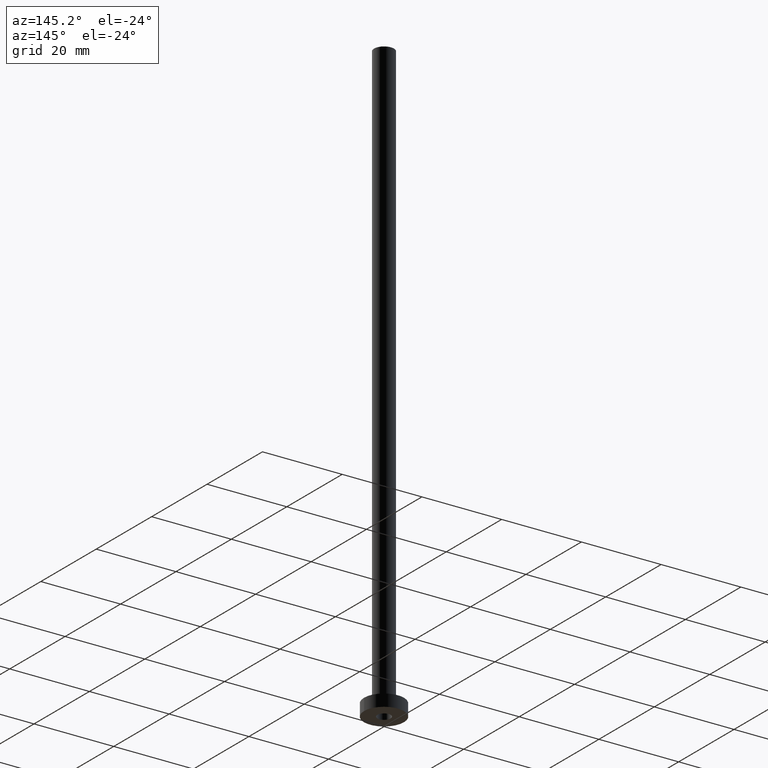
[diagram: clean part render]
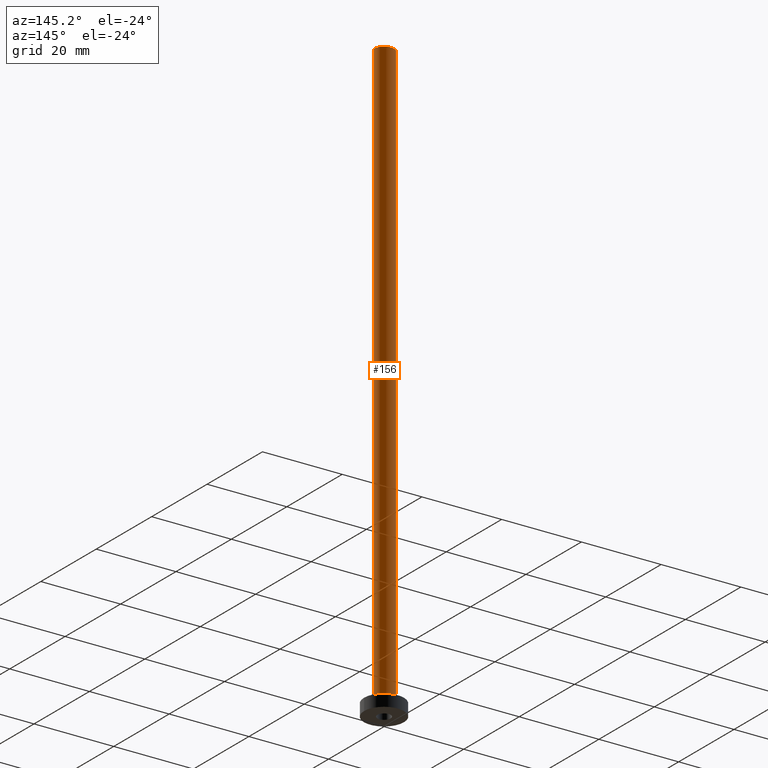
[diagram: same view with one face highlighted and labeled with its STEP entity id]
A machine part, auxiliary view. The second image highlights one B-rep face of the part: STEP entity #156.
In plain terms, the highlighted cylindrical surface (edge-blend (fillet) strip) has radius 2.5 mm, axis along (-0, -0, -1).
Its self-contained STEP definition (entity closure, byte-faithful):
#18 = EDGE_CURVE ( 'NONE', #353, #49, #415, .T. ) ;
#38 = ORIENTED_EDGE ( 'NONE', *, *, #444, .F. ) ;
#48 = DIRECTION ( 'NONE',  ( -0.000000000000000000, -0.000000000000000000, -1.000000000000000000 ) ) ;
#49 = VERTEX_POINT ( 'NONE', #150 ) ;
#67 = AXIS2_PLACEMENT_3D ( 'NONE', #266, #405, #217 ) ;
#70 = DIRECTION ( 'NONE',  ( -0.000000000000000000, -0.000000000000000000, -1.000000000000000000 ) ) ;
#77 = CARTESIAN_POINT ( 'NONE',  ( -2.500000000000000000, 0.000000000000000000, 150.0000000000000000 ) ) ;
#87 = ORIENTED_EDGE ( 'NONE', *, *, #233, .F. ) ;
#117 = VERTEX_POINT ( 'NONE', #164 ) ;
#118 = LINE ( 'NONE', #304, #196 ) ;
#120 = CIRCLE ( 'NONE', #67, 2.500000000000000000 ) ;
#130 = CARTESIAN_POINT ( 'NONE',  ( 2.500000000000000000, 3.061616997868383141E-16, 3.299999999999997158 ) ) ;
#150 = CARTESIAN_POINT ( 'NONE',  ( -2.500000000000000000, 0.000000000000000000, 3.299999999999997158 ) ) ;
#156 = ADVANCED_FACE ( 'NONE', ( #204 ), #282, .T. ) ;
#161 = CARTESIAN_POINT ( 'NONE',  ( 0.000000000000000000, 0.000000000000000000, 150.0000000000000000 ) ) ;
#164 = CARTESIAN_POINT ( 'NONE',  ( 2.500000000000000000, 3.061616997868383141E-16, 150.0000000000000000 ) ) ;
#174 = CARTESIAN_POINT ( 'NONE',  ( -2.500000000000000000, 0.000000000000000000, 150.0000000000000000 ) ) ;
#196 = VECTOR ( 'NONE', #48, 1000.000000000000000 ) ;
#204 = FACE_OUTER_BOUND ( 'NONE', #364, .T. ) ;
#214 = ORIENTED_EDGE ( 'NONE', *, *, #18, .T. ) ;
#217 = DIRECTION ( 'NONE',  ( 1.000000000000000000, 0.000000000000000000, 0.000000000000000000 ) ) ;
#233 = EDGE_CURVE ( 'NONE', #254, #49, #290, .T. ) ;
#241 = DIRECTION ( 'NONE',  ( -0.000000000000000000, -0.000000000000000000, -1.000000000000000000 ) ) ;
#254 = VERTEX_POINT ( 'NONE', #77 ) ;
#266 = CARTESIAN_POINT ( 'NONE',  ( 0.000000000000000000, 0.000000000000000000, 150.0000000000000000 ) ) ;
#282 = CYLINDRICAL_SURFACE ( 'NONE', #303, 2.500000000000000000 ) ;
#290 = LINE ( 'NONE', #174, #427 ) ;
#298 = ORIENTED_EDGE ( 'NONE', *, *, #421, .T. ) ;
#303 = AXIS2_PLACEMENT_3D ( 'NONE', #161, #241, #318 ) ;
#304 = CARTESIAN_POINT ( 'NONE',  ( 2.500000000000000000, 3.061616997868383141E-16, 150.0000000000000000 ) ) ;
#306 = DIRECTION ( 'NONE',  ( 1.000000000000000000, 0.000000000000000000, 0.000000000000000000 ) ) ;
#318 = DIRECTION ( 'NONE',  ( -1.000000000000000000, 0.000000000000000000, 0.000000000000000000 ) ) ;
#320 = AXIS2_PLACEMENT_3D ( 'NONE', #440, #401, #306 ) ;
#353 = VERTEX_POINT ( 'NONE', #130 ) ;
#364 = EDGE_LOOP ( 'NONE', ( #38, #298, #214, #87 ) ) ;
#401 = DIRECTION ( 'NONE',  ( 0.000000000000000000, 0.000000000000000000, 1.000000000000000000 ) ) ;
#405 = DIRECTION ( 'NONE',  ( 0.000000000000000000, 0.000000000000000000, 1.000000000000000000 ) ) ;
#415 = CIRCLE ( 'NONE', #320, 2.500000000000000000 ) ;
#421 = EDGE_CURVE ( 'NONE', #117, #353, #118, .T. ) ;
#427 = VECTOR ( 'NONE', #70, 1000.000000000000000 ) ;
#440 = CARTESIAN_POINT ( 'NONE',  ( 0.000000000000000000, 0.000000000000000000, 3.299999999999997158 ) ) ;
#444 = EDGE_CURVE ( 'NONE', #117, #254, #120, .T. ) ;